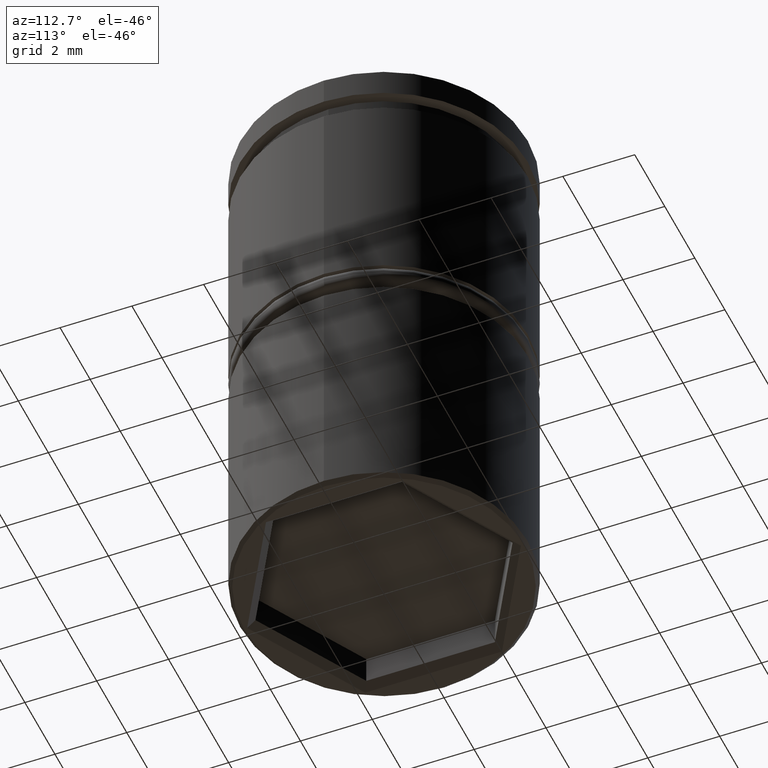
[diagram: clean part render]
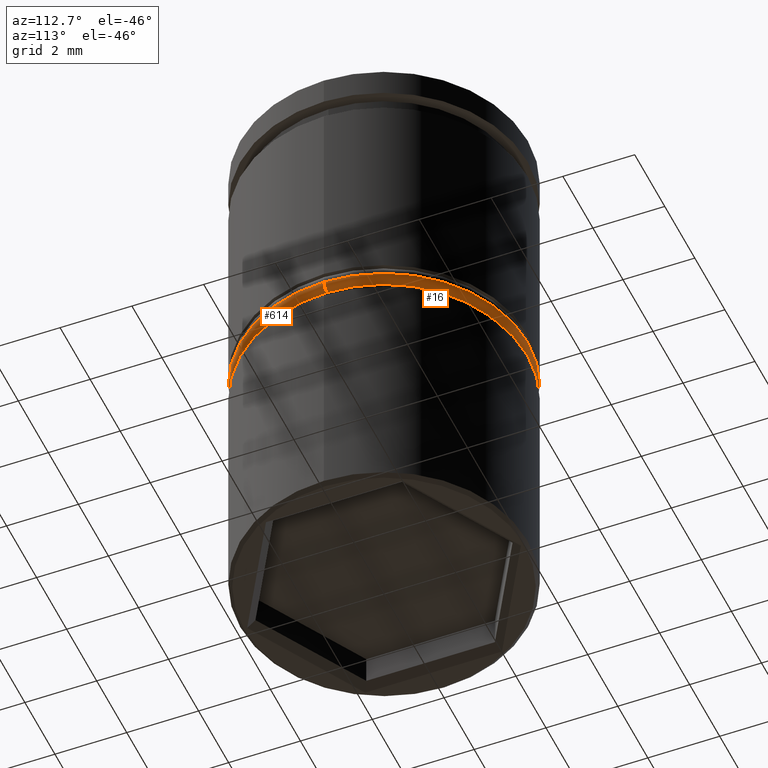
[diagram: same view with one multi-face feature highlighted, each face labeled with its STEP entity id]
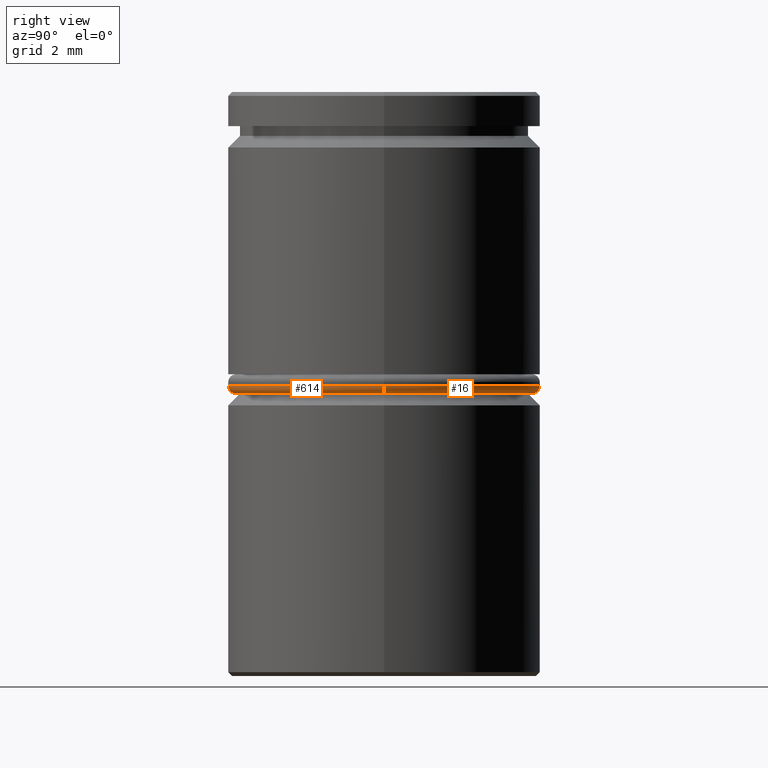
[diagram: same view with one multi-face feature highlighted, each face labeled with its STEP entity id]
A machine part, auxiliary view. The highlighted faces form ONE feature: a constant-radius fillet chain: 2 tangent blend faces with common blend radius 0.2 mm. The faces share edges in the B-rep.
A second angle (right view) of the same feature is appended — it is thin or edge-on in the first view.
Their STEP definitions:
[1] entity #16 (Torus):
#8 = TOROIDAL_SURFACE ( 'NONE', #955, 3.799999999999999822, 0.2000000000000000111 ) ;
#16 = ADVANCED_FACE ( 'NONE', ( #114 ), #8, .T. ) ;
#47 = DIRECTION ( 'NONE',  ( 0.000000000000000000, 0.000000000000000000, 1.000000000000000000 ) ) ;
#49 = CIRCLE ( 'NONE', #412, 3.799999999999999822 ) ;
#87 = CARTESIAN_POINT ( 'NONE',  ( -4.000000000000000000, 4.898587196589412829E-16, -7.550000000000000711 ) ) ;
#114 = FACE_OUTER_BOUND ( 'NONE', #208, .T. ) ;
#117 = DIRECTION ( 'NONE',  ( 1.224646799147353207E-16, 1.000000000000000000, -0.000000000000000000 ) ) ;
#120 = CIRCLE ( 'NONE', #971, 0.1999999999999996503 ) ;
#175 = VERTEX_POINT ( 'NONE', #801 ) ;
#208 = EDGE_LOOP ( 'NONE', ( #864, #387, #788, #318 ) ) ;
#221 = DIRECTION ( 'NONE',  ( 1.000000000000000000, 0.000000000000000000, 0.000000000000000000 ) ) ;
#226 = CARTESIAN_POINT ( 'NONE',  ( -3.799999999999999822, 4.653657836759942730E-16, -7.550000000000000711 ) ) ;
#273 = AXIS2_PLACEMENT_3D ( 'NONE', #1139, #47, #221 ) ;
#284 = CARTESIAN_POINT ( 'NONE',  ( -3.799999999999999822, 4.776122516674677286E-16, -7.750000000000000000 ) ) ;
#285 = CARTESIAN_POINT ( 'NONE',  ( 0.000000000000000000, 0.000000000000000000, -7.550000000000000711 ) ) ;
#318 = ORIENTED_EDGE ( 'NONE', *, *, #434, .F. ) ;
#342 = DIRECTION ( 'NONE',  ( -0.000000000000000000, -0.000000000000000000, -1.000000000000000000 ) ) ;
#373 = AXIS2_PLACEMENT_3D ( 'NONE', #226, #117, #959 ) ;
#387 = ORIENTED_EDGE ( 'NONE', *, *, #452, .T. ) ;
#412 = AXIS2_PLACEMENT_3D ( 'NONE', #1157, #342, #703 ) ;
#434 = EDGE_CURVE ( 'NONE', #1052, #175, #120, .T. ) ;
#452 = EDGE_CURVE ( 'NONE', #767, #980, #883, .T. ) ;
#485 = CIRCLE ( 'NONE', #273, 4.000000000000000000 ) ;
#573 = DIRECTION ( 'NONE',  ( 0.000000000000000000, 0.000000000000000000, -1.000000000000000000 ) ) ;
#644 = DIRECTION ( 'NONE',  ( 0.000000000000000000, 0.000000000000000000, 1.000000000000000000 ) ) ;
#651 = DIRECTION ( 'NONE',  ( 1.000000000000000000, 0.000000000000000000, 0.000000000000000000 ) ) ;
#657 = CARTESIAN_POINT ( 'NONE',  ( 3.799999999999999822, 0.000000000000000000, -7.550000000000000711 ) ) ;
#703 = DIRECTION ( 'NONE',  ( 1.000000000000000000, 0.000000000000000000, 0.000000000000000000 ) ) ;
#767 = VERTEX_POINT ( 'NONE', #284 ) ;
#788 = ORIENTED_EDGE ( 'NONE', *, *, #910, .F. ) ;
#801 = CARTESIAN_POINT ( 'NONE',  ( 4.000000000000000000, 0.000000000000000000, -7.550000000000000711 ) ) ;
#864 = ORIENTED_EDGE ( 'NONE', *, *, #1022, .F. ) ;
#883 = CIRCLE ( 'NONE', #373, 0.2000000000000000944 ) ;
#910 = EDGE_CURVE ( 'NONE', #175, #980, #485, .T. ) ;
#955 = AXIS2_PLACEMENT_3D ( 'NONE', #285, #644, #651 ) ;
#959 = DIRECTION ( 'NONE',  ( -1.000000000000000000, 1.224646799147350742E-16, 0.000000000000000000 ) ) ;
#971 = AXIS2_PLACEMENT_3D ( 'NONE', #657, #1016, #573 ) ;
#980 = VERTEX_POINT ( 'NONE', #87 ) ;
#1016 = DIRECTION ( 'NONE',  ( 0.000000000000000000, -1.000000000000000000, 0.000000000000000000 ) ) ;
#1022 = EDGE_CURVE ( 'NONE', #767, #1052, #49, .T. ) ;
#1052 = VERTEX_POINT ( 'NONE', #1111 ) ;
#1111 = CARTESIAN_POINT ( 'NONE',  ( 3.799999999999999822, 0.000000000000000000, -7.750000000000000000 ) ) ;
#1139 = CARTESIAN_POINT ( 'NONE',  ( 0.000000000000000000, 0.000000000000000000, -7.550000000000000711 ) ) ;
#1157 = CARTESIAN_POINT ( 'NONE',  ( 0.000000000000000000, 0.000000000000000000, -7.750000000000000000 ) ) ;
[2] entity #614 (Torus):
#83 = AXIS2_PLACEMENT_3D ( 'NONE', #596, #323, #953 ) ;
#87 = CARTESIAN_POINT ( 'NONE',  ( -4.000000000000000000, 4.898587196589412829E-16, -7.550000000000000711 ) ) ;
#88 = DIRECTION ( 'NONE',  ( 0.000000000000000000, 0.000000000000000000, 1.000000000000000000 ) ) ;
#117 = DIRECTION ( 'NONE',  ( 1.224646799147353207E-16, 1.000000000000000000, -0.000000000000000000 ) ) ;
#120 = CIRCLE ( 'NONE', #971, 0.1999999999999996503 ) ;
#155 = CARTESIAN_POINT ( 'NONE',  ( 0.000000000000000000, 0.000000000000000000, -7.550000000000000711 ) ) ;
#175 = VERTEX_POINT ( 'NONE', #801 ) ;
#226 = CARTESIAN_POINT ( 'NONE',  ( -3.799999999999999822, 4.653657836759942730E-16, -7.550000000000000711 ) ) ;
#270 = AXIS2_PLACEMENT_3D ( 'NONE', #639, #88, #541 ) ;
#277 = FACE_OUTER_BOUND ( 'NONE', #1158, .T. ) ;
#284 = CARTESIAN_POINT ( 'NONE',  ( -3.799999999999999822, 4.776122516674677286E-16, -7.750000000000000000 ) ) ;
#311 = DIRECTION ( 'NONE',  ( 0.000000000000000000, 0.000000000000000000, 1.000000000000000000 ) ) ;
#323 = DIRECTION ( 'NONE',  ( -0.000000000000000000, -0.000000000000000000, -1.000000000000000000 ) ) ;
#373 = AXIS2_PLACEMENT_3D ( 'NONE', #226, #117, #959 ) ;
#433 = ORIENTED_EDGE ( 'NONE', *, *, #452, .F. ) ;
#434 = EDGE_CURVE ( 'NONE', #1052, #175, #120, .T. ) ;
#452 = EDGE_CURVE ( 'NONE', #767, #980, #883, .T. ) ;
#541 = DIRECTION ( 'NONE',  ( 1.000000000000000000, 0.000000000000000000, 0.000000000000000000 ) ) ;
#567 = CIRCLE ( 'NONE', #83, 3.799999999999999822 ) ;
#573 = DIRECTION ( 'NONE',  ( 0.000000000000000000, 0.000000000000000000, -1.000000000000000000 ) ) ;
#596 = CARTESIAN_POINT ( 'NONE',  ( 0.000000000000000000, 0.000000000000000000, -7.750000000000000000 ) ) ;
#614 = ADVANCED_FACE ( 'NONE', ( #277 ), #791, .T. ) ;
#639 = CARTESIAN_POINT ( 'NONE',  ( 0.000000000000000000, 0.000000000000000000, -7.550000000000000711 ) ) ;
#657 = CARTESIAN_POINT ( 'NONE',  ( 3.799999999999999822, 0.000000000000000000, -7.550000000000000711 ) ) ;
#735 = AXIS2_PLACEMENT_3D ( 'NONE', #155, #311, #879 ) ;
#767 = VERTEX_POINT ( 'NONE', #284 ) ;
#791 = TOROIDAL_SURFACE ( 'NONE', #270, 3.799999999999999822, 0.2000000000000000111 ) ;
#801 = CARTESIAN_POINT ( 'NONE',  ( 4.000000000000000000, 0.000000000000000000, -7.550000000000000711 ) ) ;
#803 = ORIENTED_EDGE ( 'NONE', *, *, #927, .F. ) ;
#879 = DIRECTION ( 'NONE',  ( 1.000000000000000000, 0.000000000000000000, 0.000000000000000000 ) ) ;
#883 = CIRCLE ( 'NONE', #373, 0.2000000000000000944 ) ;
#888 = EDGE_CURVE ( 'NONE', #980, #175, #938, .T. ) ;
#927 = EDGE_CURVE ( 'NONE', #1052, #767, #567, .T. ) ;
#938 = CIRCLE ( 'NONE', #735, 4.000000000000000000 ) ;
#952 = ORIENTED_EDGE ( 'NONE', *, *, #434, .T. ) ;
#953 = DIRECTION ( 'NONE',  ( 1.000000000000000000, 0.000000000000000000, 0.000000000000000000 ) ) ;
#959 = DIRECTION ( 'NONE',  ( -1.000000000000000000, 1.224646799147350742E-16, 0.000000000000000000 ) ) ;
#971 = AXIS2_PLACEMENT_3D ( 'NONE', #657, #1016, #573 ) ;
#980 = VERTEX_POINT ( 'NONE', #87 ) ;
#1007 = ORIENTED_EDGE ( 'NONE', *, *, #888, .F. ) ;
#1016 = DIRECTION ( 'NONE',  ( 0.000000000000000000, -1.000000000000000000, 0.000000000000000000 ) ) ;
#1052 = VERTEX_POINT ( 'NONE', #1111 ) ;
#1111 = CARTESIAN_POINT ( 'NONE',  ( 3.799999999999999822, 0.000000000000000000, -7.750000000000000000 ) ) ;
#1158 = EDGE_LOOP ( 'NONE', ( #433, #803, #952, #1007 ) ) ;